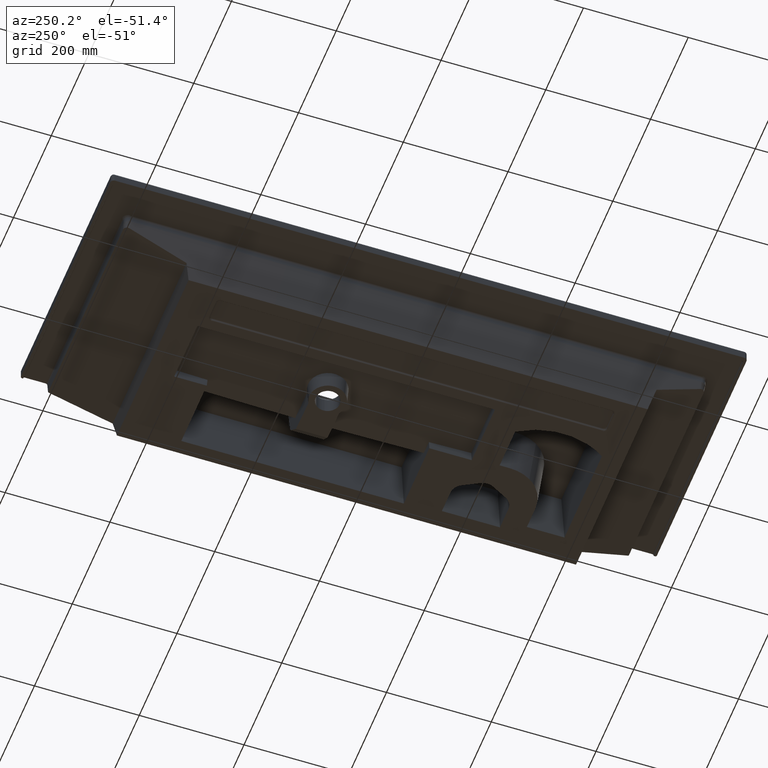
[diagram: clean part render]
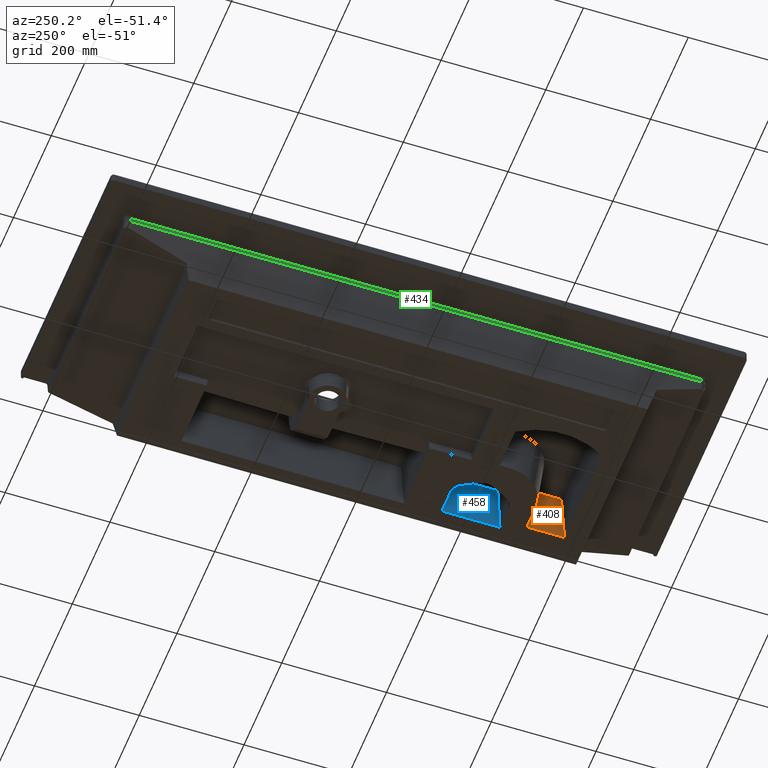
[diagram: same view with three faces highlighted in distinct colors, each labeled with its STEP entity id]
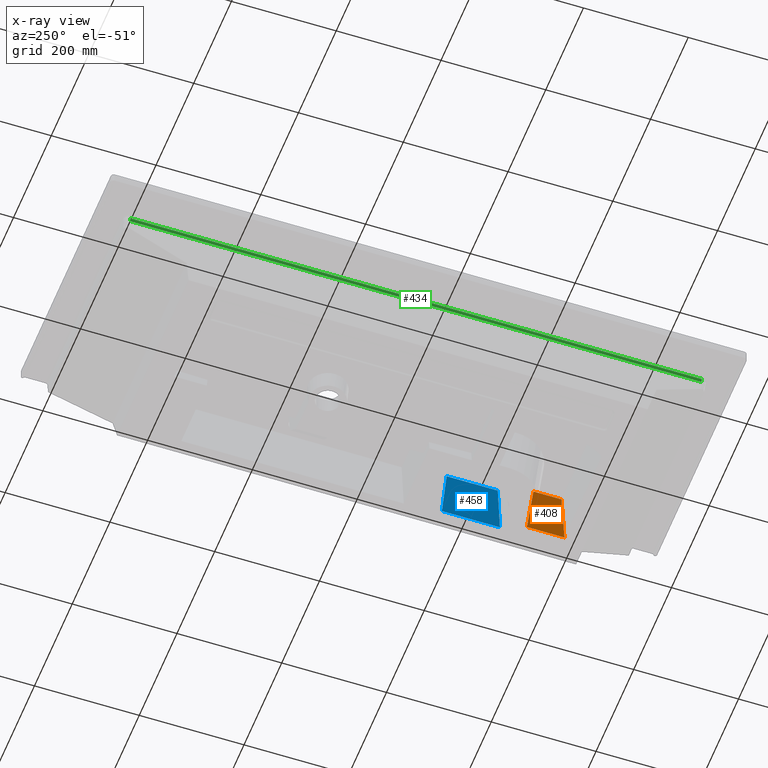
[diagram: x-ray of the same camera — body ghosted, the three highlighted faces saturated]
A machine part, auxiliary view with three faces highlighted in distinct colors.
The next image is the same camera in x-ray (body ghosted, the three faces saturated) — at least one of them is partly hidden behind the body in this view.
Their STEP definitions:

[orange] entity #408 — the highlighted planar face has unit normal (0.9953, 0, 0.0967).
#268=FACE_OUTER_BOUND('',#664,.T.);
#408=ADVANCED_FACE('',(#268),#561,.F.);
#561=PLANE('',#2649);
#664=EDGE_LOOP('',(#1043,#1044,#1045,#1046));
#1043=ORIENTED_EDGE('',*,*,#2044,.F.);
#1044=ORIENTED_EDGE('',*,*,#2045,.F.);
#1045=ORIENTED_EDGE('',*,*,#2046,.T.);
#1046=ORIENTED_EDGE('',*,*,#2040,.T.);
#1797=VERTEX_POINT('',#3266);
#1798=VERTEX_POINT('',#3268);
#1801=VERTEX_POINT('',#3289);
#1802=VERTEX_POINT('',#3291);
#2040=EDGE_CURVE('',#1798,#1797,#2410,.T.);
#2044=EDGE_CURVE('',#1801,#1797,#2413,.T.);
#2045=EDGE_CURVE('',#1802,#1801,#2414,.T.);
#2046=EDGE_CURVE('',#1802,#1798,#2415,.T.);
#2410=LINE('',#3267,#2527);
#2413=LINE('',#3288,#2530);
#2414=LINE('',#3290,#2531);
#2415=LINE('',#3292,#2532);
#2527=VECTOR('',#2790,1.);
#2530=VECTOR('',#2795,1.);
#2531=VECTOR('',#2796,1.);
#2532=VECTOR('',#2797,1.);
#2649=AXIS2_PLACEMENT_3D('',#3293,#2798,#2799);
#2790=DIRECTION('',(-8.90747162739617E-19,1.,3.45813149222326E-18));
#2795=DIRECTION('',(-0.0962991007896024,-0.0953999543208014,0.990770070148823));
#2796=DIRECTION('',(-5.54839498727207E-19,1.,2.15675197899222E-21));
#2797=DIRECTION('',(-0.0962991007896024,0.0953999543208017,0.990770070148823));
#2798=DIRECTION('',(0.99530965448864,5.52028464874051E-19,0.0967403312052701));
#2799=DIRECTION('',(-0.0967403312052701,0.,0.995309654488639));
#3266=CARTESIAN_POINT('',(180.292822229299,-329.380157158936,-14.000944256628));
#3267=CARTESIAN_POINT('',(180.292822229299,442.,-14.0009442566281));
#3268=CARTESIAN_POINT('',(180.292822229299,-382.827997018148,-14.0009442566281));
#3288=CARTESIAN_POINT('',(196.484909779124,-313.339255427291,-180.592694190478));
#3289=CARTESIAN_POINT('',(189.526496767165,-320.232697609442,-109.001295190337));
#3290=CARTESIAN_POINT('',(189.526496767165,442.,-109.001295190337));
#3291=CARTESIAN_POINT('',(189.526496767165,-391.975456567643,-109.001295190337));
#3292=CARTESIAN_POINT('',(187.02968800933,-389.501960558934,-83.3129619882066));
#3293=CARTESIAN_POINT('',(189.435569288553,442.,-108.065790874878));

[blue] entity #458 — the highlighted planar face has unit normal (0.9975, 0, 0.0704).
#313=FACE_OUTER_BOUND('',#723,.T.);
#458=ADVANCED_FACE('',(#313),#583,.F.);
#583=PLANE('',#2684);
#723=EDGE_LOOP('',(#1366,#1367,#1368,#1369));
#1366=ORIENTED_EDGE('',*,*,#2226,.T.);
#1367=ORIENTED_EDGE('',*,*,#2280,.T.);
#1368=ORIENTED_EDGE('',*,*,#2279,.T.);
#1369=ORIENTED_EDGE('',*,*,#2281,.F.);
#1942=VERTEX_POINT('',#4687);
#1948=VERTEX_POINT('',#4699);
#1982=VERTEX_POINT('',#5152);
#1988=VERTEX_POINT('',#5164);
#2226=EDGE_CURVE('',#1942,#1948,#2477,.T.);
#2279=EDGE_CURVE('',#1982,#1988,#2488,.T.);
#2280=EDGE_CURVE('',#1948,#1982,#2489,.T.);
#2281=EDGE_CURVE('',#1942,#1988,#2490,.T.);
#2477=LINE('',#4700,#2597);
#2488=LINE('',#5165,#2608);
#2489=LINE('',#5167,#2609);
#2490=LINE('',#5168,#2610);
#2597=VECTOR('',#2914,1.);
#2608=VECTOR('',#2941,1.);
#2609=VECTOR('',#2944,1.);
#2610=VECTOR('',#2945,1.);
#2684=AXIS2_PLACEMENT_3D('',#5169,#2946,#2947);
#2914=DIRECTION('',(5.54839498727207E-19,-1.,-2.15675197899223E-21));
#2941=DIRECTION('',(-7.98814751694132E-19,1.,3.45812828333868E-18));
#2944=DIRECTION('',(-0.0702493239073156,0.0695839461756235,0.995099546239065));
#2945=DIRECTION('',(-0.0702493239073156,-0.0695839461756235,0.995099546239065));
#2946=DIRECTION('',(0.997517429163881,5.53310191862202E-19,0.0704200150119365));
#2947=DIRECTION('',(-0.0704200150119365,0.,0.997517429163881));
#4687=CARTESIAN_POINT('',(206.831817358355,-164.20642371362,-109.001899229498));
#4699=CARTESIAN_POINT('',(206.831817358355,-275.066570089734,-109.001899229498));
#4700=CARTESIAN_POINT('',(206.831817358355,442.,-109.001899229498));
#5152=CARTESIAN_POINT('',(200.125247897329,-268.423522976358,-14.0016365039457));
#5164=CARTESIAN_POINT('',(200.125247897329,-170.849470826996,-14.0016365039457));
#5165=CARTESIAN_POINT('',(200.125247897329,442.,-14.0016365039457));
#5167=CARTESIAN_POINT('',(205.367725429845,-273.616345542605,-88.262664562487));
#5168=CARTESIAN_POINT('',(209.880291754092,-161.186823431764,-152.184314649213));
#5169=CARTESIAN_POINT('',(206.917432796853,442.,-110.214663698423));

[green] entity #434 — the highlighted planar face has unit normal (-1, 0, 0).
#294=FACE_OUTER_BOUND('',#690,.T.);
#434=ADVANCED_FACE('',(#294),#573,.T.);
#573=PLANE('',#2663);
#690=EDGE_LOOP('',(#1168,#1169,#1170,#1171));
#1168=ORIENTED_EDGE('',*,*,#2138,.T.);
#1169=ORIENTED_EDGE('',*,*,#2139,.T.);
#1170=ORIENTED_EDGE('',*,*,#2140,.T.);
#1171=ORIENTED_EDGE('',*,*,#2141,.T.);
#1875=VERTEX_POINT('',#4047);
#1876=VERTEX_POINT('',#4048);
#1877=VERTEX_POINT('',#4050);
#1878=VERTEX_POINT('',#4052);
#2138=EDGE_CURVE('',#1875,#1876,#2445,.T.);
#2139=EDGE_CURVE('',#1876,#1877,#2446,.T.);
#2140=EDGE_CURVE('',#1877,#1878,#2447,.T.);
#2141=EDGE_CURVE('',#1878,#1875,#2448,.T.);
#2445=LINE('',#4046,#2565);
#2446=LINE('',#4049,#2566);
#2447=LINE('',#4051,#2567);
#2448=LINE('',#4053,#2568);
#2565=VECTOR('',#2858,1.);
#2566=VECTOR('',#2859,1.);
#2567=VECTOR('',#2860,1.);
#2568=VECTOR('',#2861,1.);
#2663=AXIS2_PLACEMENT_3D('',#4054,#2862,#2863);
#2858=DIRECTION('',(0.,-0.0697564737443321,0.99756405025981));
#2859=DIRECTION('',(0.,1.,3.45810040085076E-18));
#2860=DIRECTION('',(0.,-0.0697564737443321,-0.99756405025981));
#2861=DIRECTION('',(-3.90274931196041E-16,-1.,8.58604848631291E-16));
#2862=DIRECTION('',(-1.,0.,0.));
#2863=DIRECTION('',(0.,0.,1.));
#4046=CARTESIAN_POINT('',(-170.611323434411,-515.792139223794,-146.276980590654));
#4047=CARTESIAN_POINT('',(-170.611323434411,-523.940222510748,-29.7539608723787));
#4048=CARTESIAN_POINT('',(-170.611323434411,-524.55315925878,-20.9885570023272));
#4049=CARTESIAN_POINT('',(-170.611323434411,566.83285674359,-20.9885570023273));
#4050=CARTESIAN_POINT('',(-170.611323434411,566.553159258776,-20.9885570023272));
#4051=CARTESIAN_POINT('',(-170.611323434411,561.485407136387,-93.4607887761527));
#4052=CARTESIAN_POINT('',(-170.61132343441,565.940222510745,-29.7539608723797));
#4053=CARTESIAN_POINT('',(-170.611323434411,1.25000000000007,-29.7539608723792));
#4054=CARTESIAN_POINT('',(-170.611323434411,400.500000000001,-82.2035924856436));